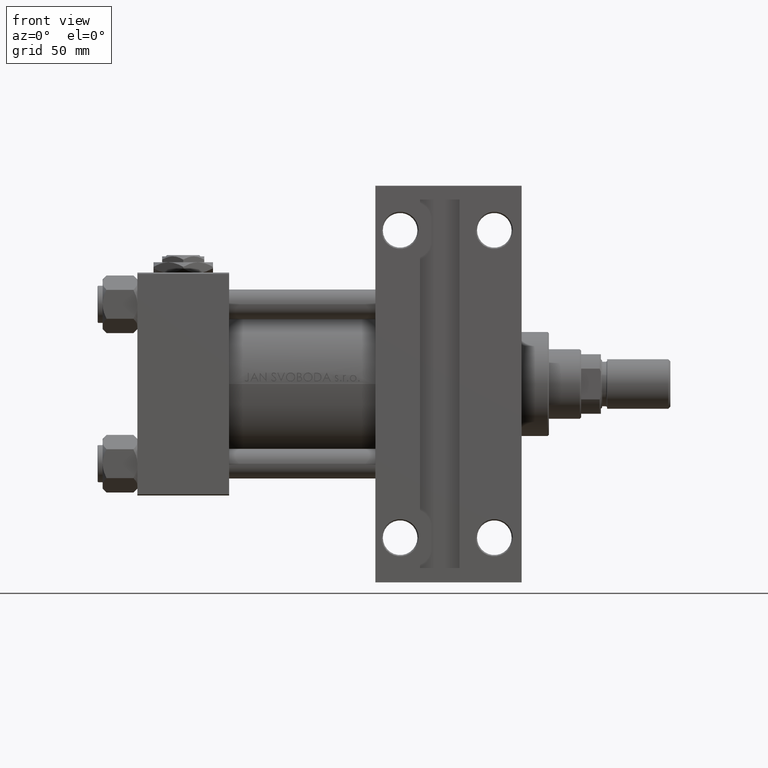
[diagram: clean part render]
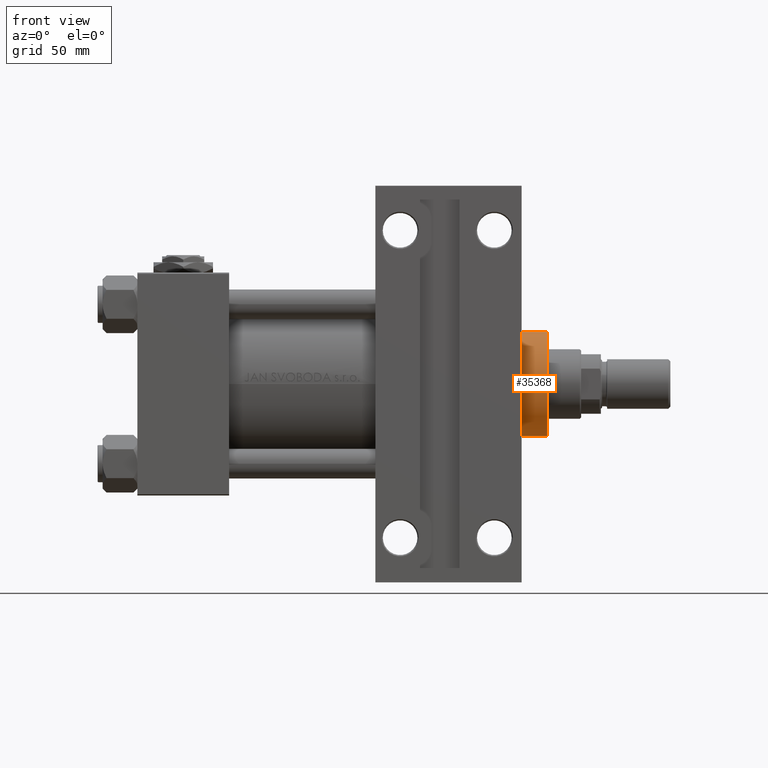
[diagram: same view with one face highlighted and labeled with its STEP entity id]
A machine part, front view. The second image highlights one B-rep face of the part: STEP entity #35368.
In plain terms, the highlighted cylindrical surface (partial cylindrical patch) has radius 21 mm, axis along (-1, 0, 0).
Its self-contained STEP definition (entity closure, byte-faithful):
#350 = ORIENTED_EDGE ( 'NONE', *, *, #21076, .F. ) ;
#2341 = DIRECTION ( 'NONE',  ( 0.000000000000000000, 0.000000000000000000, 1.000000000000000000 ) ) ;
#2816 = LINE ( 'NONE', #48987, #22223 ) ;
#3187 = VECTOR ( 'NONE', #5589, 1000.000000000000000 ) ;
#5332 = CIRCLE ( 'NONE', #25544, 21.00000000000000000 ) ;
#5345 = VERTEX_POINT ( 'NONE', #34354 ) ;
#5589 = DIRECTION ( 'NONE',  ( -0.000000000000000000, -0.000000000000000000, -1.000000000000000000 ) ) ;
#7231 = EDGE_LOOP ( 'NONE', ( #34914, #20383, #14758, #350 ) ) ;
#7392 = CYLINDRICAL_SURFACE ( 'NONE', #37887, 21.00000000000000000 ) ;
#7591 = VERTEX_POINT ( 'NONE', #9868 ) ;
#9868 = CARTESIAN_POINT ( 'NONE',  ( -21.00000000000000000, 0.000000000000000000, 28.69999999999999929 ) ) ;
#11925 = DIRECTION ( 'NONE',  ( -0.000000000000000000, -0.000000000000000000, -1.000000000000000000 ) ) ;
#14203 = DIRECTION ( 'NONE',  ( -0.000000000000000000, -0.000000000000000000, -1.000000000000000000 ) ) ;
#14540 = AXIS2_PLACEMENT_3D ( 'NONE', #38536, #38055, #45933 ) ;
#14758 = ORIENTED_EDGE ( 'NONE', *, *, #30028, .T. ) ;
#18614 = CIRCLE ( 'NONE', #14540, 21.00000000000000000 ) ;
#19000 = EDGE_CURVE ( 'NONE', #39473, #43877, #18614, .T. ) ;
#19505 = CARTESIAN_POINT ( 'NONE',  ( -21.00000000000000000, 0.000000000000000000, 39.19999999999999574 ) ) ;
#20383 = ORIENTED_EDGE ( 'NONE', *, *, #28074, .T. ) ;
#21076 = EDGE_CURVE ( 'NONE', #39473, #7591, #47956, .T. ) ;
#22223 = VECTOR ( 'NONE', #14203, 1000.000000000000000 ) ;
#22857 = DIRECTION ( 'NONE',  ( -1.000000000000000000, 0.000000000000000000, 0.000000000000000000 ) ) ;
#25544 = AXIS2_PLACEMENT_3D ( 'NONE', #37050, #2341, #39865 ) ;
#28074 = EDGE_CURVE ( 'NONE', #43877, #5345, #2816, .T. ) ;
#30028 = EDGE_CURVE ( 'NONE', #5345, #7591, #5332, .T. ) ;
#30635 = CARTESIAN_POINT ( 'NONE',  ( 21.00000000000000000, 2.571758278209441661E-15, 39.19999999999999574 ) ) ;
#34354 = CARTESIAN_POINT ( 'NONE',  ( 21.00000000000000000, 2.571758278209441661E-15, 28.69999999999999929 ) ) ;
#34764 = CARTESIAN_POINT ( 'NONE',  ( 0.000000000000000000, 0.000000000000000000, 39.69999999999999574 ) ) ;
#34914 = ORIENTED_EDGE ( 'NONE', *, *, #19000, .T. ) ;
#35368 = ADVANCED_FACE ( 'NONE', ( #45954 ), #7392, .T. ) ;
#35996 = CARTESIAN_POINT ( 'NONE',  ( -21.00000000000000000, 0.000000000000000000, 39.69999999999999574 ) ) ;
#37050 = CARTESIAN_POINT ( 'NONE',  ( 0.000000000000000000, 0.000000000000000000, 28.69999999999999929 ) ) ;
#37887 = AXIS2_PLACEMENT_3D ( 'NONE', #34764, #11925, #22857 ) ;
#38055 = DIRECTION ( 'NONE',  ( 0.000000000000000000, 0.000000000000000000, -1.000000000000000000 ) ) ;
#38536 = CARTESIAN_POINT ( 'NONE',  ( 0.000000000000000000, 0.000000000000000000, 39.19999999999999574 ) ) ;
#39473 = VERTEX_POINT ( 'NONE', #19505 ) ;
#39865 = DIRECTION ( 'NONE',  ( 1.000000000000000000, 0.000000000000000000, 0.000000000000000000 ) ) ;
#43877 = VERTEX_POINT ( 'NONE', #30635 ) ;
#45933 = DIRECTION ( 'NONE',  ( 1.000000000000000000, 0.000000000000000000, 0.000000000000000000 ) ) ;
#45954 = FACE_OUTER_BOUND ( 'NONE', #7231, .T. ) ;
#47956 = LINE ( 'NONE', #35996, #3187 ) ;
#48987 = CARTESIAN_POINT ( 'NONE',  ( 21.00000000000000000, 2.571758278209441661E-15, 39.69999999999999574 ) ) ;